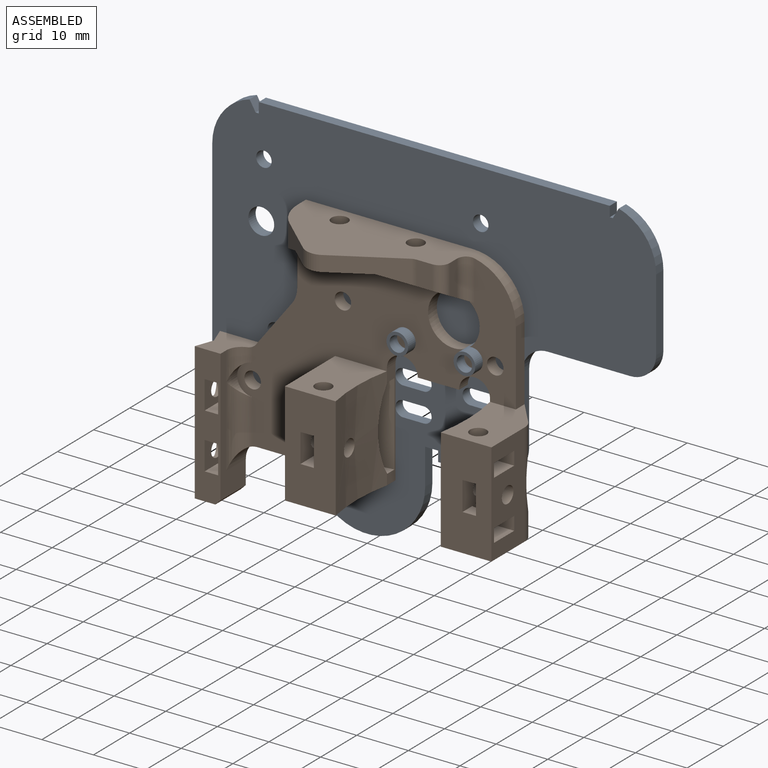
[diagram: assembled view]
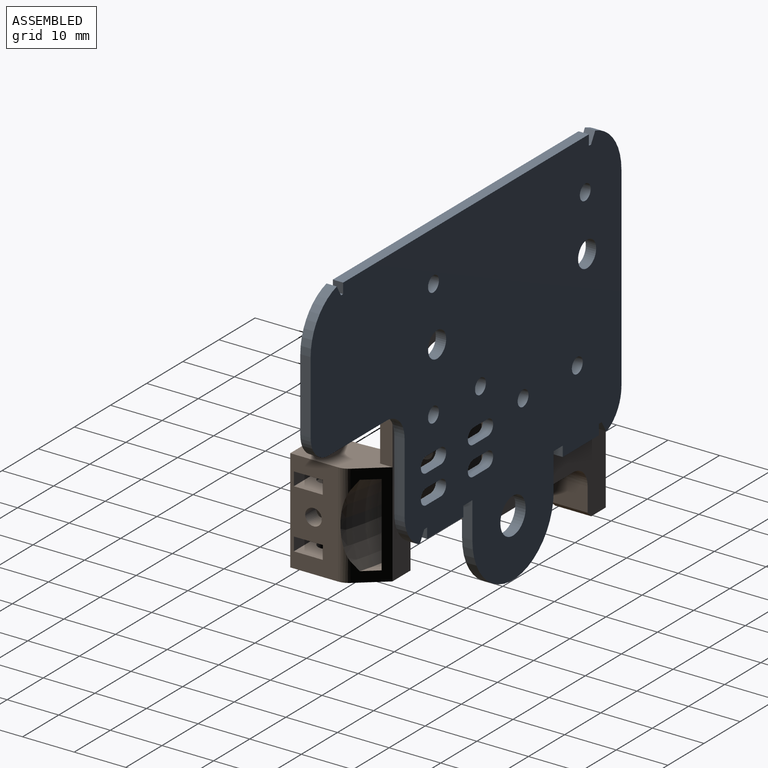
[diagram: assembled view, second angle]
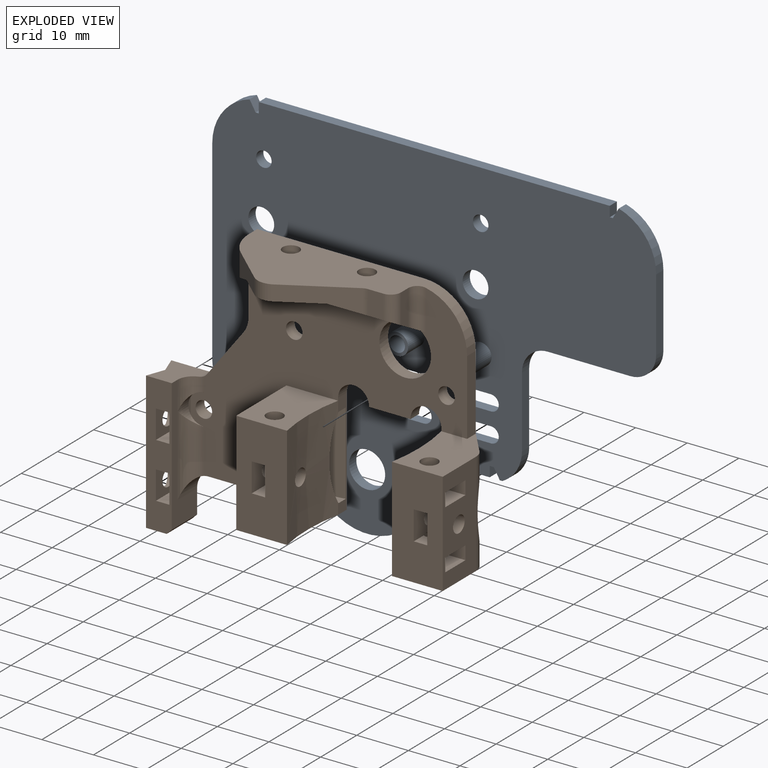
[diagram: exploded view]
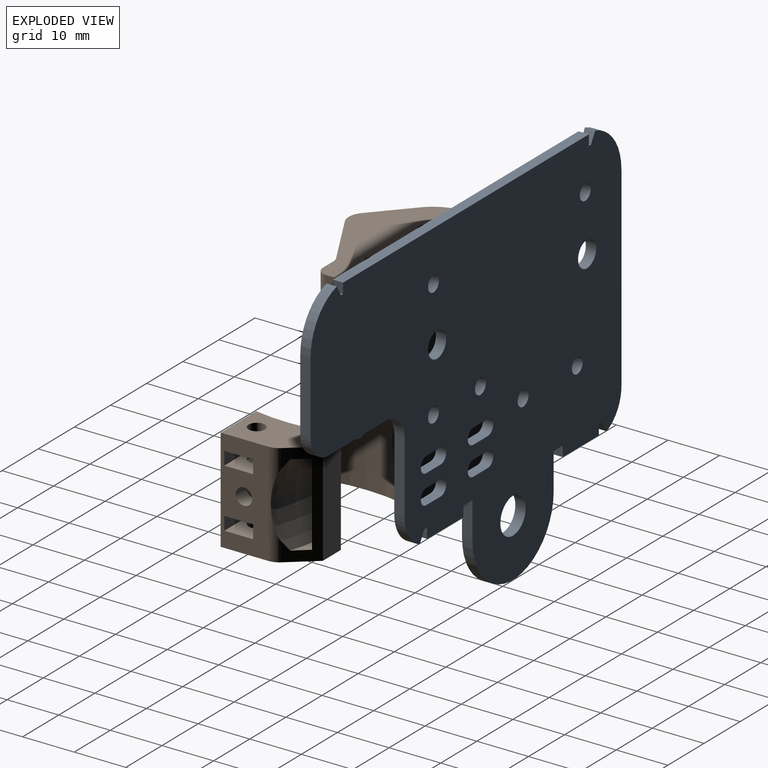
[diagram: exploded view, second angle]
ASSEMBLY  parts=2 mates=2
PART A: 65 faces, bbox 86x6.5x70 mm
  f0: plane 4x2mm, normal (0,0,-1), area 8mm2, adj f1,f56,f57,f58
  f1: cylinder r=1.5mm len=3mm, axis (0,1,0), area 9.4mm2, adj f0,f2,f57,f58
  f2: plane 4x2mm, normal (0,0,1), area 8mm2, adj f1,f56,f57,f58
  f3: plane 4x2mm, normal (0,0,1), area 8mm2, adj f4,f45,f57,f58
  f4: cylinder r=1.5mm len=3mm, axis (0,1,0), area 9.4mm2, adj f3,f5,f57,f58
  f5: plane 4x2mm, normal (0,0,-1), area 8mm2, adj f4,f45,f57,f58
  f6: cylinder r=1.5mm len=3mm, axis (0,1,0), area 9.4mm2, adj f7,f53,f57,f58
  f7: plane 4x2mm, normal (0,0,-1), area 8mm2, adj f6,f8,f57,f58
  f8: cylinder r=1.5mm len=3mm, axis (0,1,0), area 9.4mm2, adj f7,f53,f57,f58
  f9: cylinder r=1.5mm len=3mm, axis (0,1,0), area 9.4mm2, adj f10,f54,f57,f58
  f10: plane 4x2mm, normal (0,0,1), area 8mm2, adj f9,f11,f57,f58
  f11: cylinder r=1.5mm len=3mm, axis (0,1,0), area 9.4mm2, adj f10,f54,f57,f58
  f12: plane 2x2mm, normal (-1,0,0), area 4mm2, adj f13,f55,f57,f58
  f13: plane 10x2mm, normal (0,0,-1), area 20mm2, adj f12,f14,f57,f58
  f14: plane 2x2mm, normal (1,0,0), area 4mm2, adj f13,f15,f57,f58
  f15: plane 2.5x2mm, normal (0,0,-1), area 5mm2, adj f14,f16,f57,f58
  f16: plane 7x2mm, normal (-1,0,0), area 14mm2, adj f15,f17,f57,f58
  f17: cylinder r=11.25mm len=22.5mm, axis (0,1,0), area 70.7mm2, adj f16,f18,f57,f58
  f18: plane 7x2mm, normal (1,0,0), area 14mm2, adj f17,f19,f57,f58
  f19: plane 2.5x2mm, normal (0,0,-1), area 5mm2, adj f18,f20,f57,f58
  f20: plane 2x2mm, normal (-1,0,0), area 4mm2, adj f19,f21,f57,f58
  f21: plane 10x2mm, normal (0,0,-1), area 20mm2, adj f20,f22,f57,f58
  f22: plane 2x2mm, normal (1,0,0), area 4mm2, adj f21,f23,f57,f58
  f23: plane 2x0.8mm, normal (0,0,-1), area 1.6mm2, adj f22,f24,f57,f58
  f24: plane 2x2mm, normal (-0.87,0,-0.5), area 4.6mm2, adj f23,f25,f57,f58
  f25: plane 2x0.5mm, normal (0,0,-1), area 1mm2, adj f24,f26,f57,f58
  f26: cylinder r=7mm len=6.22mm, axis (0,1,0), area 15.3mm2, adj f25,f27,f57,f58
  f27: plane 37.91x2mm, normal (1,0,0), area 75.8mm2, adj f26,f28,f57,f58
  f28: cylinder r=10mm len=9.61mm, axis (0,1,0), area 25.8mm2, adj f27,f29,f57,f58
  f29: plane 2x2mm, normal (-0.87,0,0.5), area 4.6mm2, adj f28,f30,f57,f58
  f30: plane 2x0.6mm, normal (0,0,1), area 1.2mm2, adj f29,f31,f57,f58
  f31: plane 2x2mm, normal (1,0,0), area 4mm2, adj f30,f32,f57,f58
  f32: plane 68x2mm, normal (0,0,1), area 136mm2, adj f31,f33,f57,f58
  f33: plane 2x2mm, normal (-1,0,0), area 4mm2, adj f32,f34,f57,f58
  f34: plane 2x0.6mm, normal (0,0,1), area 1.2mm2, adj f33,f35,f57,f58
  f35: plane 2x2mm, normal (0.87,0,0.5), area 4.6mm2, adj f34,f36,f57,f58
  f36: cylinder r=10mm len=9.61mm, axis (0,1,0), area 25.8mm2, adj f35,f37,f57,f58
  f37: plane 14.14x2mm, normal (-1,0,0), area 28.3mm2, adj f36,f38,f57,f58
  f38: cylinder r=5mm len=5mm, axis (0,1,0), area 15.7mm2, adj f37,f39,f57,f58
  f39: plane 16x2mm, normal (0,0,-1), area 32mm2, adj f38,f40,f57,f58
  f40: cylinder r=5mm len=5mm, axis (0,1,0), area 15.7mm2, adj f39,f41,f57,f58
  f41: plane 13.78x2mm, normal (-1,0,0), area 27.6mm2, adj f40,f42,f57,f58
  f42: cylinder r=7mm len=6.22mm, axis (0,1,0), area 15.3mm2, adj f41,f43,f57,f58
  f43: plane 2x0.5mm, normal (0,0,-1), area 1mm2, adj f42,f44,f57,f58
  f44: plane 2x2mm, normal (0.87,0,-0.5), area 4.6mm2, adj f43,f55,f57,f58
  f45: cylinder r=1.5mm len=3mm, axis (0,1,0), area 9.4mm2, adj f3,f5,f57,f58
  f46: cylinder r=1.5mm len=3mm, axis (0,1,0), area 18.8mm2, adj f57,f58
  f47: cylinder r=1.5mm len=3mm, axis (0,1,0), area 18.8mm2, adj f57,f58
  f48: cylinder r=2.5mm len=5mm, axis (0,1,0), area 31.4mm2, adj f57,f58
  f49: cylinder r=2.5mm len=5mm, axis (0,1,0), area 31.4mm2, adj f57,f58
  f50: cylinder r=1.5mm len=3mm, axis (0,1,0), area 18.8mm2, adj f57,f58
  f51: cylinder r=1.5mm len=3mm, axis (0,1,0), area 18.8mm2, adj f57,f58
  f52: cylinder r=3.5mm len=7mm, axis (0,1,0), area 44mm2, adj f57,f58
  f53: plane 4x2mm, normal (0,0,1), area 8mm2, adj f6,f8,f57,f58
  f54: plane 4x2mm, normal (0,0,-1), area 8mm2, adj f9,f11,f57,f58
  f55: plane 2x0.8mm, normal (0,0,-1), area 1.6mm2, adj f12,f44,f57,f58
  f56: cylinder r=1.5mm len=3mm, axis (0,1,0), area 9.4mm2, adj f0,f2,f57,f58
  f57: plane 86x70mm, normal (0,-1,0), area 4017mm2, adj f0,f1,f2,f3,f4,f5,f6,f7
  f58: plane 86x70mm, normal (0,1,0), area 4003.4mm2, adj f0,f1,f2,f3,f4,f5,f6,f7
  f59: cylinder r=2.1mm len=4.5mm, axis (0,-1,0), area 59.4mm2, adj f58,f60
  f60: plane 4.2x4.2mm, normal (0,1,0), area 6.8mm2, adj f59,f64
  f61: cylinder r=2.1mm len=4.5mm, axis (0,-1,0), area 59.4mm2, adj f58,f62
  f62: plane 4.2x4.2mm, normal (0,1,0), area 6.8mm2, adj f61,f63
  f63: cylinder r=1.5mm len=6.5mm, axis (0,1,0), area 61.3mm2, adj f57,f62
  f64: cylinder r=1.5mm len=6.5mm, axis (0,1,0), area 61.3mm2, adj f57,f60
PART B: 148 faces, bbox 66.2x17.7x54.6 mm
  f0: plane 59x54.1mm, normal (0,1,0), area 1677.2mm2, adj f3,f8,f10,f12,f20,f21,f22,f23
  f1: plane 54x44.43mm, normal (0,-1,0), area 962.4mm2, adj f4,f8,f9,f12,f20,f21,f22,f23
  f2: plane 15.56x4.6mm, normal (0,0,-1), area 40.7mm2, adj f121,f122,f123,f129
  f3: plane 25.66x7mm, normal (1,0,0), area 65.9mm2, adj f0,f4,f5,f9,f93,f109,f110
  f4: cylinder r=3mm len=5.82mm, axis (0,0,-1), area 17.3mm2, adj f1,f3,f93,f94,f112
  f5: plane 26.66x5mm, normal (0,-1,0), area 104.2mm2, adj f3,f11,f92,f93,f97,f98,f99,f100
  f6: cylinder r=1.6mm len=3.2mm, axis (-1,0,0), area 10.3mm2, adj f10,f11,f105
  f7: cylinder r=1.6mm len=3.2mm, axis (-1,0,0), area 10.3mm2, adj f10,f11,f99
  f8: cylinder r=1.6mm len=3.2mm, axis (0,1,0), area 24.1mm2, adj f0,f1
  f9: cylinder r=3mm len=15.5mm, axis (0,0,-1), area 53.2mm2, adj f1,f3,f94,f109
  f10: plane 26.66x3.5mm, normal (-0.94,-0.34,0), area 91.4mm2, adj f0,f6,f7,f11,f92,f93
  f11: plane 26.66x3.5mm, normal (-0.94,0.34,0), area 90.1mm2, adj f5,f6,f7,f10,f92,f93
  f12: plane 25x16.3mm, normal (0,0,-1), area 183.3mm2, adj f0,f1,f13,f17,f21,f32,f37,f109
  f13: plane 20x9.83mm, normal (0,-1,0), area 182mm2, adj f12,f17,f32,f33,f86,f89,f90,f91
  f14: cone r=0mm half-angle=59deg, axis (0,0,-1), area 6.6mm2, adj f44,f89,f90
  f15: cylinder r=1.6mm len=3.67mm, axis (1,0,0), area 36.9mm2, adj f17,f90
  f16: cylinder r=1.6mm len=3.67mm, axis (1,0,0), area 36.9mm2, adj f18,f84
  f17: cylinder r=35mm len=20mm, axis (0,0,1), area 250.9mm2, adj f12,f13,f15,f21,f33,f75
  f18: cylinder r=35mm len=20mm, axis (0,0,1), area 250.9mm2, adj f16,f25,f26,f29,f31,f72
  f19: plane 20x9.25mm, normal (1,0,0), area 147.8mm2, adj f26,f29,f31,f46,f47,f49,f50,f53
  f20: plane 14.5x2.4mm, normal (1,0,0), area 34.8mm2, adj f0,f1,f31,f116
  f21: plane 20.5x2.4mm, normal (1,0,0), area 15.3mm2, adj f0,f1,f12,f17,f22,f73,f74,f75
  f22: cylinder r=3mm len=6mm, axis (0,1,0), area 22.6mm2, adj f0,f1,f21,f23
  f23: plane 8x2.4mm, normal (0,0,-1), area 19.2mm2, adj f0,f1,f22,f24
  f24: cylinder r=3mm len=6mm, axis (0,1,0), area 22.6mm2, adj f0,f1,f23,f25
  f25: plane 20.5x2.4mm, normal (-1,0,0), area 15.3mm2, adj f0,f1,f18,f24,f26,f69,f70,f71
  f26: plane 16.3x10mm, normal (0,0,-1), area 132.3mm2, adj f0,f18,f19,f25,f29,f30,f36,f77
  f27: cylinder r=1.6mm len=3.2mm, axis (0,1,0), area 24.1mm2, adj f0,f1
  f28: cylinder r=1.6mm len=3.2mm, axis (0,1,0), area 24.1mm2, adj f0,f1
  f29: plane 20x9.83mm, normal (0,-1,0), area 182mm2, adj f18,f19,f26,f31,f80,f83,f84,f85
  f30: plane 20.04x5.17mm, normal (0.77,0.64,0), area 56.8mm2, adj f0,f26,f31,f69,f70,f71,f72,f77
  f31: plane 16.3x10mm, normal (0,0,1), area 120.3mm2, adj f1,f18,f19,f20,f29,f30,f35,f77
  f32: plane 20x13.9mm, normal (-1,0,0), area 184.3mm2, adj f1,f12,f13,f33,f38,f39,f42,f43
  f33: plane 13.9x10mm, normal (0,0,1), area 123.3mm2, adj f1,f13,f17,f32,f34
  f34: cylinder r=1.6mm len=3.2mm, axis (0,0,1), area 30.2mm2, adj f33,f66
  f35: cylinder r=1.6mm len=3.2mm, axis (0,0,1), area 30.2mm2, adj f31,f58
  f36: cylinder r=1.6mm len=3.2mm, axis (0,0,-1), area 30.2mm2, adj f26,f50
  f37: cylinder r=1.6mm len=3.2mm, axis (0,0,-1), area 30.2mm2, adj f12,f43
  f38: plane 6.62x2.6mm, normal (0,1,0), area 17.2mm2, adj f32,f41,f42,f43
  f39: plane 6.62x2.6mm, normal (0,-1,0), area 17.2mm2, adj f32,f40,f42,f43
  f40: plane 2.8x2.6mm, normal (-0.87,-0.5,0), area 8.4mm2, adj f39,f41,f42,f43
  f41: plane 2.8x2.6mm, normal (-0.87,0.5,0), area 8.4mm2, adj f38,f40,f42,f43
  f42: plane 8.23x5.6mm, normal (0,0,-1), area 33.5mm2, adj f32,f38,f39,f40,f41,f44
  f43: plane 8.23x5.6mm, normal (0,0,1), area 33.5mm2, adj f32,f37,f38,f39,f40,f41
  f44: cylinder r=1.6mm len=3.2mm, axis (0,0,-1), area 12.1mm2, adj f14,f42
  f45: plane 2.8x2.6mm, normal (0.87,-0.5,0), area 8.4mm2, adj f46,f48,f49,f50
  f46: plane 6.62x2.6mm, normal (0,-1,0), area 17.2mm2, adj f19,f45,f49,f50
  f47: plane 6.62x2.6mm, normal (0,1,0), area 17.2mm2, adj f19,f48,f49,f50
  f48: plane 2.8x2.6mm, normal (0.87,0.5,0), area 8.4mm2, adj f45,f47,f49,f50
  f49: plane 8.23x5.6mm, normal (0,0,-1), area 33.5mm2, adj f19,f45,f46,f47,f48,f52
  f50: plane 8.23x5.6mm, normal (0,0,1), area 33.5mm2, adj f19,f36,f45,f46,f47,f48
  f51: cone r=0mm half-angle=59deg, axis (0,0,-1), area 6.5mm2, adj f52,f80,f84
  f52: cylinder r=1.6mm len=3.2mm, axis (0,0,-1), area 12.1mm2, adj f49,f51
  f53: plane 6.62x2.6mm, normal (0,1,0), area 17.2mm2, adj f19,f56,f57,f58
  f54: plane 6.62x2.6mm, normal (0,-1,0), area 17.2mm2, adj f19,f55,f57,f58
  f55: plane 2.8x2.6mm, normal (0.87,-0.5,0), area 8.4mm2, adj f54,f56,f57,f58
  f56: plane 2.8x2.6mm, normal (0.87,0.5,0), area 8.4mm2, adj f53,f55,f57,f58
  f57: plane 8.23x5.6mm, normal (0,0,1), area 33.5mm2, adj f19,f53,f54,f55,f56,f60
  f58: plane 8.23x5.6mm, normal (0,0,-1), area 33.5mm2, adj f19,f35,f53,f54,f55,f56
  f59: cone r=0mm half-angle=59deg, axis (0,0,1), area 9.4mm2, adj f60
  f60: cylinder r=1.6mm len=3.2mm, axis (0,0,1), area 4mm2, adj f57,f59
  f61: plane 2.8x2.6mm, normal (-0.87,0.5,0), area 8.4mm2, adj f62,f64,f65,f66
  f62: plane 2.8x2.6mm, normal (-0.87,-0.5,0), area 8.4mm2, adj f61,f63,f65,f66
  f63: plane 6.62x2.6mm, normal (0,-1,0), area 17.2mm2, adj f32,f62,f65,f66
  f64: plane 6.62x2.6mm, normal (0,1,0), area 17.2mm2, adj f32,f61,f65,f66
  f65: plane 8.23x5.6mm, normal (0,0,1), area 33.5mm2, adj f32,f61,f62,f63,f64,f68
  f66: plane 8.23x5.6mm, normal (0,0,-1), area 33.5mm2, adj f32,f34,f61,f62,f63,f64
  f67: cone r=0mm half-angle=59deg, axis (0,0,1), area 9.4mm2, adj f68
  f68: cylinder r=1.6mm len=3.2mm, axis (0,0,1), area 4mm2, adj f65,f67
  f69: cylinder r=50.02mm len=16mm, axis (0,0,-1), area 99.2mm2, adj f25,f30,f70,f71
  f70: plane 8.34x3.7mm, normal (0,0,-1), area 14.7mm2, adj f25,f30,f69,f72
  f71: plane 8.34x3.7mm, normal (0,0,1), area 14.7mm2, adj f25,f30,f69,f72
  f72: torus R=63.02mm, axis (0,0,-1), area 159.9mm2, adj f18,f25,f30,f70,f71,f77
  f73: cylinder r=50.02mm len=16mm, axis (0,0,-1), area 163.8mm2, adj f1,f21,f74,f76
  f74: plane 10x4.22mm, normal (0,0,-1), area 20.5mm2, adj f21,f32,f73,f75
  f75: torus R=63.02mm, axis (0,0,-1), area 167.1mm2, adj f17,f21,f32,f74,f76
  f76: plane 10x4.22mm, normal (0,0,1), area 20.5mm2, adj f21,f32,f73,f75
  f77: cylinder r=3mm len=20mm, axis (0,0,-1), area 27.4mm2, adj f19,f26,f30,f31,f72
  f78: cylinder r=1.6mm len=3.2mm, axis (1,0,0), area 30.2mm2, adj f19,f85
  f79: cylinder r=1.6mm len=3.2mm, axis (1,0,0), area 30.2mm2, adj f32,f91
  f80: plane 6.12x2.6mm, normal (0,0,1), area 13.5mm2, adj f29,f51,f81,f84,f85
  f81: plane 2.8x2.6mm, normal (0,-0.87,0.5), area 8.4mm2, adj f80,f82,f84,f85
  f82: plane 2.8x2.6mm, normal (0,-0.87,-0.5), area 8.4mm2, adj f81,f83,f84,f85
  f83: plane 6.12x2.6mm, normal (0,0,-1), area 15.9mm2, adj f29,f82,f84,f85
  f84: plane 7.96x5.82mm, normal (1,0,0), area 30.6mm2, adj f16,f29,f51,f80,f81,f82,f83
  f85: plane 7.73x5.6mm, normal (-1,0,0), area 30.7mm2, adj f29,f78,f80,f81,f82,f83
  f86: plane 6.12x2.6mm, normal (0,0,-1), area 15.9mm2, adj f13,f87,f90,f91
  f87: plane 2.8x2.6mm, normal (0,-0.87,-0.5), area 8.4mm2, adj f86,f88,f90,f91
  f88: plane 2.8x2.6mm, normal (0,-0.87,0.5), area 8.4mm2, adj f87,f89,f90,f91
  f89: plane 6.12x2.6mm, normal (0,0,1), area 13.5mm2, adj f13,f14,f88,f90,f91
  f90: plane 7.73x5.6mm, normal (-1,0,0), area 30.6mm2, adj f13,f14,f15,f86,f87,f88,f89
  f91: plane 7.73x5.6mm, normal (1,0,0), area 30.7mm2, adj f13,f79,f86,f87,f88,f89
  f92: plane 7x4mm, normal (0,0,-1), area 23.5mm2, adj f0,f5,f10,f11,f110
  f93: plane 7.01x7mm, normal (0,0,1), area 37.3mm2, adj f0,f3,f4,f5,f10,f11,f112
  f94: cylinder r=3mm len=6mm, axis (0,-1,0), area 10.3mm2, adj f1,f4,f9
  f95: plane 2.75x2.6mm, normal (0,-0.87,0.5), area 8.3mm2, adj f96,f98,f99,f100
  f96: plane 2.75x2.6mm, normal (0,-0.87,-0.5), area 8.3mm2, adj f95,f97,f99,f100
  f97: plane 4.99x2.6mm, normal (0,0,-1), area 13mm2, adj f5,f96,f99,f100
  f98: plane 4.99x2.6mm, normal (0,0,1), area 13mm2, adj f5,f95,f99,f100
  f99: plane 6.58x5.5mm, normal (1,0,0), area 23.8mm2, adj f5,f7,f95,f96,f97,f98
  f100: plane 6.58x5.5mm, normal (-1,0,0), area 30.4mm2, adj f5,f95,f96,f97,f98,f107
  f101: plane 4.99x2.6mm, normal (0,0,1), area 13mm2, adj f5,f102,f105,f106
  f102: plane 2.75x2.6mm, normal (0,-0.87,0.5), area 8.3mm2, adj f101,f103,f105,f106
  f103: plane 2.75x2.6mm, normal (0,-0.87,-0.5), area 8.3mm2, adj f102,f104,f105,f106
  f104: plane 4.99x2.6mm, normal (0,0,-1), area 13mm2, adj f5,f103,f105,f106
  f105: plane 6.58x5.5mm, normal (1,0,0), area 23.8mm2, adj f5,f6,f101,f102,f103,f104
  f106: plane 6.58x5.5mm, normal (-1,0,0), area 30.4mm2, adj f5,f101,f102,f103,f104,f108
  f107: cone r=0mm half-angle=59deg, axis (-1,0,0), area 1.6mm2, adj f100
  f108: cone r=0mm half-angle=59deg, axis (-1,0,0), area 1.6mm2, adj f106
  f109: cylinder r=4mm len=5.4mm, axis (0,1,0), area 21mm2, adj f0,f1,f3,f9,f12
  f110: plane 7x1mm, normal (0.71,0,-0.71), area 9.9mm2, adj f0,f3,f5,f92
  f111: plane 9.14x7.02mm, normal (-0.79,0,0.61), area 27.6mm2, adj f0,f1,f112,f117
  f112: cylinder r=2mm len=2.57mm, axis (0,1,0), area 4.5mm2, adj f0,f1,f4,f93,f111
  f113: plane 14.48x2.2mm, normal (-1,0,0), area 31.8mm2, adj f0,f115,f117,f124
  f114: cylinder r=5mm len=10mm, axis (0,-1,0), area 83.1mm2, adj f0,f1,f129
  f115: plane 32.35x16mm, normal (0,0,1), area 350.3mm2, adj f0,f113,f116,f118,f119,f120,f121,f122
  f116: cylinder r=10mm len=10mm, axis (0,-1,0), area 38.6mm2, adj f0,f1,f20,f115,f128
  f117: cylinder r=5mm len=3.05mm, axis (0,-1,0), area 7.9mm2, adj f0,f1,f111,f113,f125
  f118: plane 6.89x2mm, normal (1,0,0), area 12.7mm2, adj f115,f127,f128,f129
  f119: plane 4.67x3mm, normal (0,-1,0), area 14mm2, adj f115,f120,f127,f129
  f120: cylinder r=2.1mm len=4.67mm, axis (0,0,1), area 4.9mm2, adj f115,f119,f121,f129
  f121: plane 12.26x6.88mm, normal (0.49,-0.87,0), area 46.4mm2, adj f2,f115,f120,f122,f129
  f122: cylinder r=3.5mm len=4.05mm, axis (0,0,1), area 13.1mm2, adj f2,f115,f121,f123
  f123: plane 7.11x6.4mm, normal (-0.67,-0.74,0), area 31.7mm2, adj f2,f115,f122,f124,f129
  f124: cylinder r=8.75mm len=22mm, axis (0,0,1), area 48.2mm2, adj f1,f113,f115,f123,f125,f126,f129
  f125: plane 7.52x0.2mm, normal (1,0,0), area 1.5mm2, adj f1,f117,f124,f126
  f126: plane 0.2x0mm, normal (0,0,1), area 0mm2, adj f1,f124,f125
  f127: cylinder r=2mm len=5.78mm, axis (0,0,1), area 16.4mm2, adj f115,f118,f119,f129
  f128: cylinder r=2mm len=8mm, axis (0,0,-1), area 23.1mm2, adj f1,f116,f118,f129
  f129: plane 34.82x9.47mm, normal (0,-0.49,-0.87), area 276.3mm2, adj f1,f2,f114,f118,f119,f120,f121,f123
  f130: plane 4.85x2.6mm, normal (1,0,0), area 12.6mm2, adj f0,f131,f134,f135
  f131: plane 2.8x2.6mm, normal (0.5,0.87,0), area 8.4mm2, adj f130,f132,f134,f135
  f132: plane 2.8x2.6mm, normal (-0.5,0.87,0), area 8.4mm2, adj f131,f133,f134,f135
  f133: plane 4.85x2.6mm, normal (-1,0,0), area 12.6mm2, adj f0,f132,f134,f135
  f134: plane 6.47x5.6mm, normal (0,0,-1), area 23.6mm2, adj f0,f130,f131,f132,f133,f147
  f135: plane 6.47x5.6mm, normal (0,0,1), area 23.6mm2, adj f0,f130,f131,f132,f133,f146
  f136: plane 4.85x2.6mm, normal (-1,0,0), area 12.6mm2, adj f0,f139,f140,f141
  f137: plane 4.85x2.6mm, normal (1,0,0), area 12.6mm2, adj f0,f138,f140,f141
  f138: plane 2.8x2.6mm, normal (0.5,0.87,0), area 8.4mm2, adj f137,f139,f140,f141
  f139: plane 2.8x2.6mm, normal (-0.5,0.87,0), area 8.4mm2, adj f136,f138,f140,f141
  f140: plane 6.47x5.6mm, normal (0,0,-1), area 23.6mm2, adj f0,f136,f137,f138,f139,f144
  f141: plane 6.47x5.6mm, normal (0,0,1), area 23.6mm2, adj f0,f136,f137,f138,f139,f143
  f142: cone r=0mm half-angle=59deg, axis (0,0,1), area 9.4mm2, adj f143
  f143: cylinder r=1.6mm len=3.2mm, axis (0,0,1), area 2.6mm2, adj f141,f142
  f144: cylinder r=1.6mm len=3.2mm, axis (0,0,1), area 21.5mm2, adj f115,f140
  f145: cone r=0mm half-angle=59deg, axis (0,0,1), area 9.4mm2, adj f146
  f146: cylinder r=1.6mm len=3.2mm, axis (0,0,1), area 2.6mm2, adj f135,f145
  f147: cylinder r=1.6mm len=3.2mm, axis (0,0,1), area 21.5mm2, adj f115,f134
PLACE A rot(axis=(0,0,1),180deg) t=(0,0,0)mm
PLACE B t=(-1.5,2.5,-7.9)mm
MATE fastened B.f22 <-> A.f58  axis (0,1,0) through (8.5,0,20.1)mm
MATE planar B.f0 <-> A.f58  axis (0,1,0) through (0.48,0,20.55)mm
